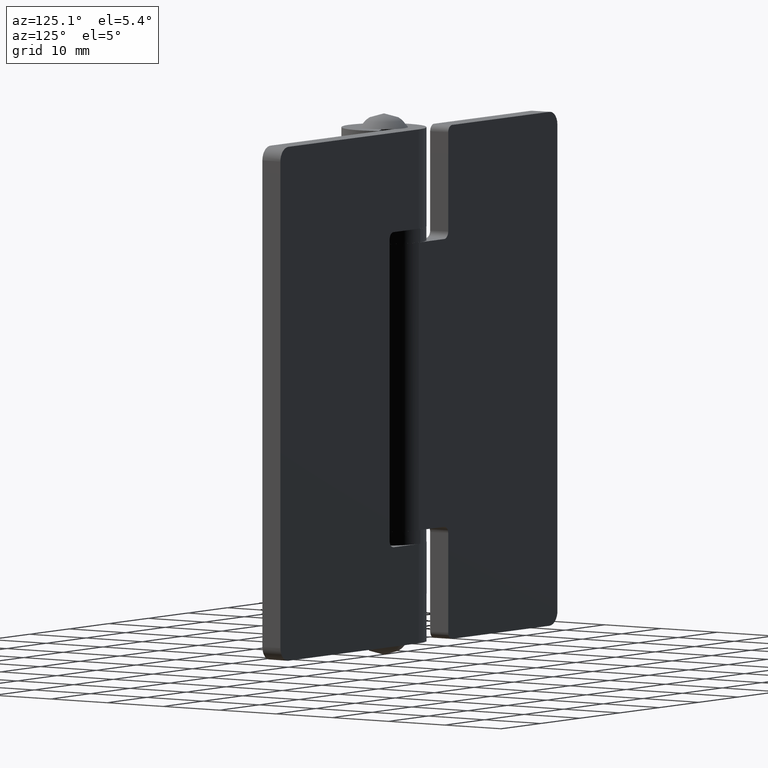
[diagram: clean part render]
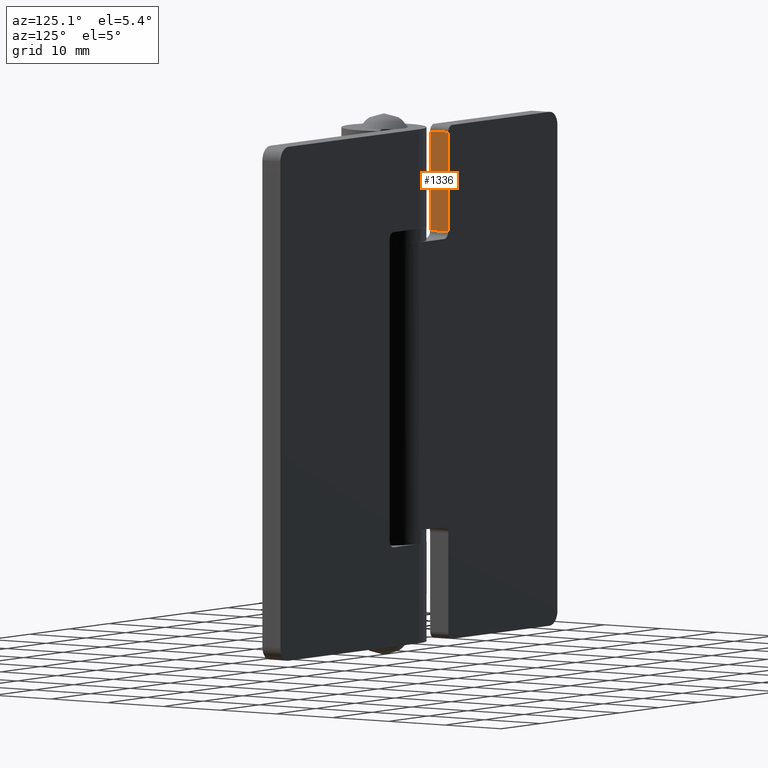
[diagram: same view with one face highlighted and labeled with its STEP entity id]
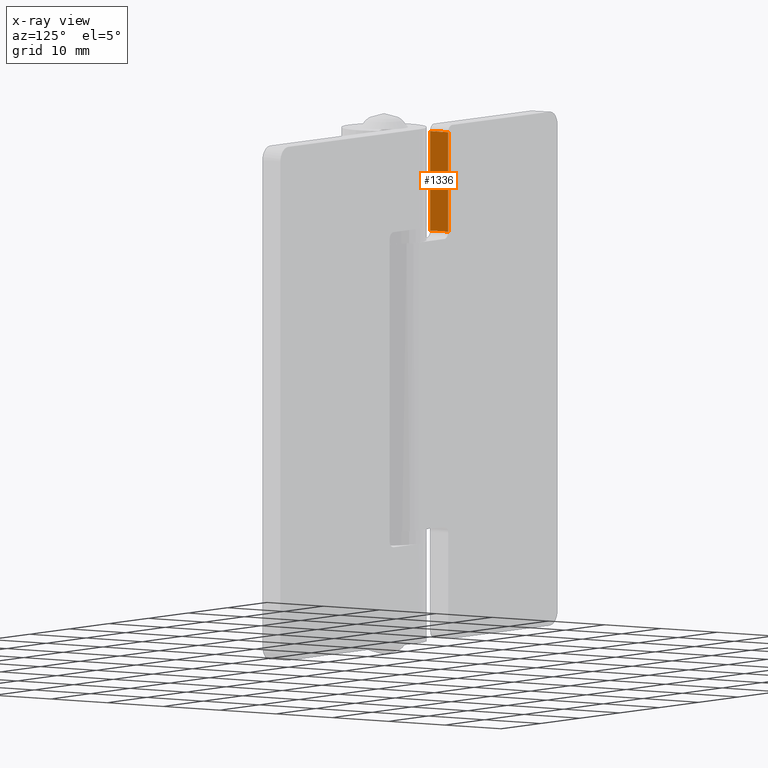
[diagram: x-ray of the same camera — body ghosted, the highlighted face saturated]
A machine part, auxiliary view. The second image highlights one B-rep face of the part: STEP entity #1336.
The next image is the same camera in x-ray: the body ghosted, the highlighted face saturated — about 0% of this face is hidden behind the body in this view.
In plain terms, the highlighted face is a freeform B-spline surface patch.
Its self-contained STEP definition (entity closure, byte-faithful):
#877=CARTESIAN_POINT('',(-7.400002000000000,3.0,59.500000000000000));
#878=VERTEX_POINT('',#877);
#899=CARTESIAN_POINT('',(-7.400002000000000,6.200001000000000,59.500000000000000));
#900=VERTEX_POINT('',#899);
#914=CARTESIAN_POINT('',(-7.400002000000000,3.0,59.500000000000000));
#915=CARTESIAN_POINT('',(-7.400002000000000,6.200001000000000,59.500000000000000));
#916=QUASI_UNIFORM_CURVE('',1,(#914,#915),.UNSPECIFIED.,.F.,.U.);
#917=EDGE_CURVE('',#878,#900,#916,.T.);
#997=CARTESIAN_POINT('',(-7.400002000000000,3.0,74.0));
#998=VERTEX_POINT('',#997);
#1014=CARTESIAN_POINT('',(-7.400002000000000,6.200001000000000,74.0));
#1015=VERTEX_POINT('',#1014);
#1016=CARTESIAN_POINT('',(-7.400002000000000,6.200001000000000,74.0));
#1017=CARTESIAN_POINT('',(-7.400002000000000,3.0,74.0));
#1018=QUASI_UNIFORM_CURVE('',1,(#1016,#1017),.UNSPECIFIED.,.F.,.U.);
#1019=EDGE_CURVE('',#1015,#998,#1018,.T.);
#1317=CARTESIAN_POINT('',(-7.400002000000000,2.840159967684873,74.724274971896193));
#1318=CARTESIAN_POINT('',(-7.400002000000000,2.840159967684873,58.775724639183501));
#1319=CARTESIAN_POINT('',(-7.400002000000000,6.359840889263936,74.724274971896193));
#1320=CARTESIAN_POINT('',(-7.400002000000000,6.359840889263936,58.775724639183501));
#1321=B_SPLINE_SURFACE_WITH_KNOTS('',1,1,((#1317,#1319),(#1318,#1320)),.UNSPECIFIED.,.F.,.F.,.U.,(2,2),(2,2),(0.0,15.948550332712690),(0.0,3.519680921579062),.UNSPECIFIED.);
#1322=CARTESIAN_POINT('',(-7.400002000000000,3.0,74.0));
#1323=CARTESIAN_POINT('',(-7.400002000000000,3.0,59.500000000000000));
#1324=QUASI_UNIFORM_CURVE('',1,(#1322,#1323),.UNSPECIFIED.,.F.,.U.);
#1325=EDGE_CURVE('',#998,#878,#1324,.T.);
#1326=ORIENTED_EDGE('',*,*,#1325,.T.);
#1327=ORIENTED_EDGE('',*,*,#917,.T.);
#1328=CARTESIAN_POINT('',(-7.400002000000000,6.200001000000000,74.0));
#1329=CARTESIAN_POINT('',(-7.400002000000000,6.200001000000000,59.500000000000000));
#1330=QUASI_UNIFORM_CURVE('',1,(#1328,#1329),.UNSPECIFIED.,.F.,.U.);
#1331=EDGE_CURVE('',#1015,#900,#1330,.T.);
#1332=ORIENTED_EDGE('',*,*,#1331,.F.);
#1333=ORIENTED_EDGE('',*,*,#1019,.T.);
#1334=EDGE_LOOP('',(#1326,#1327,#1332,#1333));
#1335=FACE_OUTER_BOUND('',#1334,.T.);
#1336=ADVANCED_FACE('',(#1335),#1321,.T.);